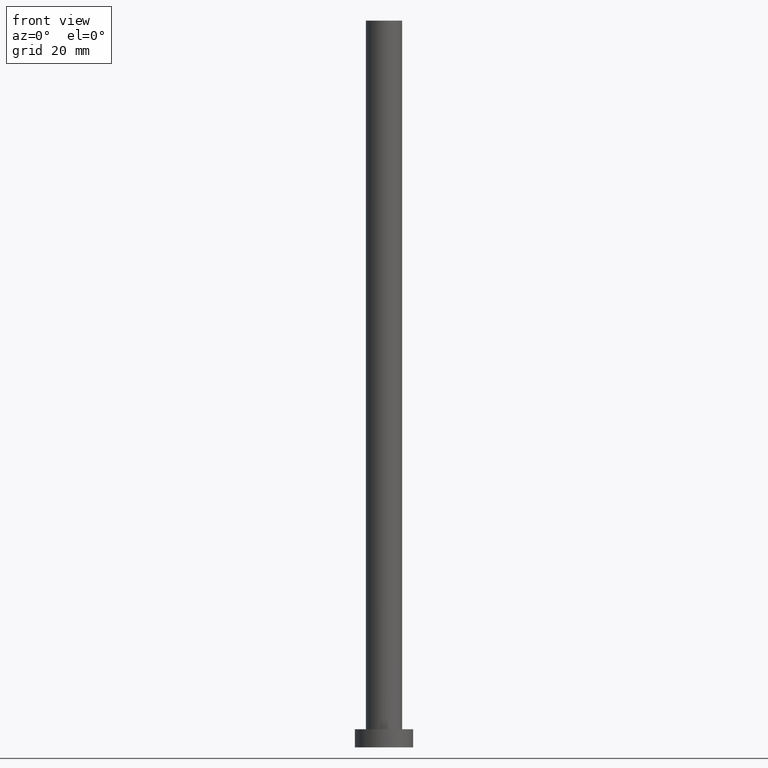
[diagram: clean part render]
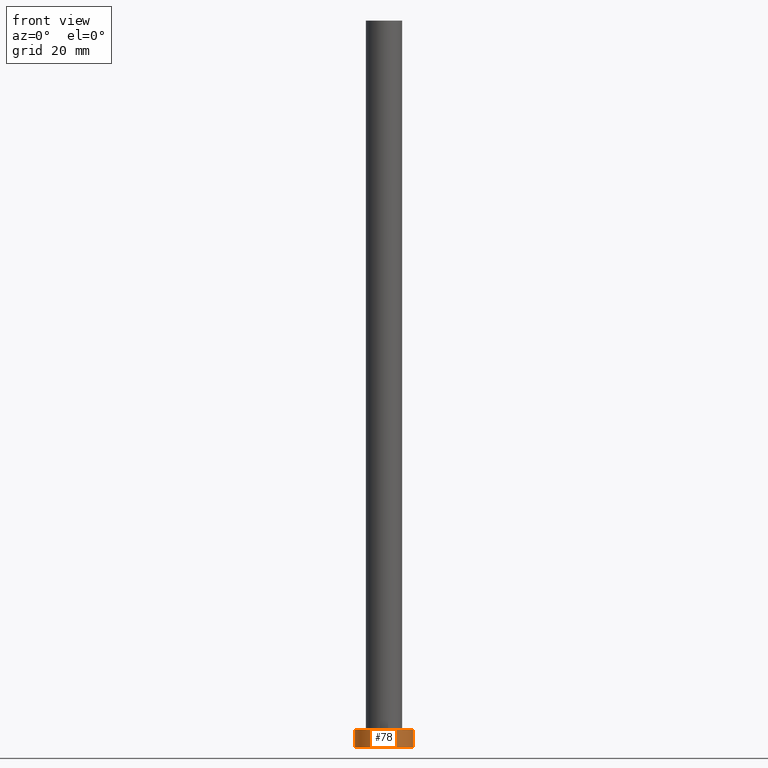
[diagram: same view with one face highlighted and labeled with its STEP entity id]
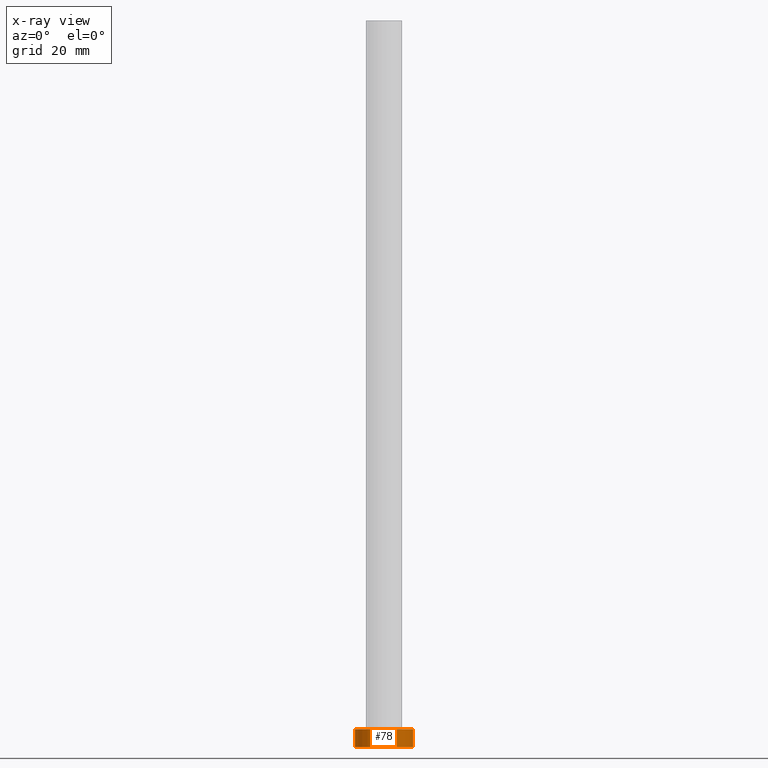
[diagram: x-ray of the same camera — body ghosted, the highlighted face saturated]
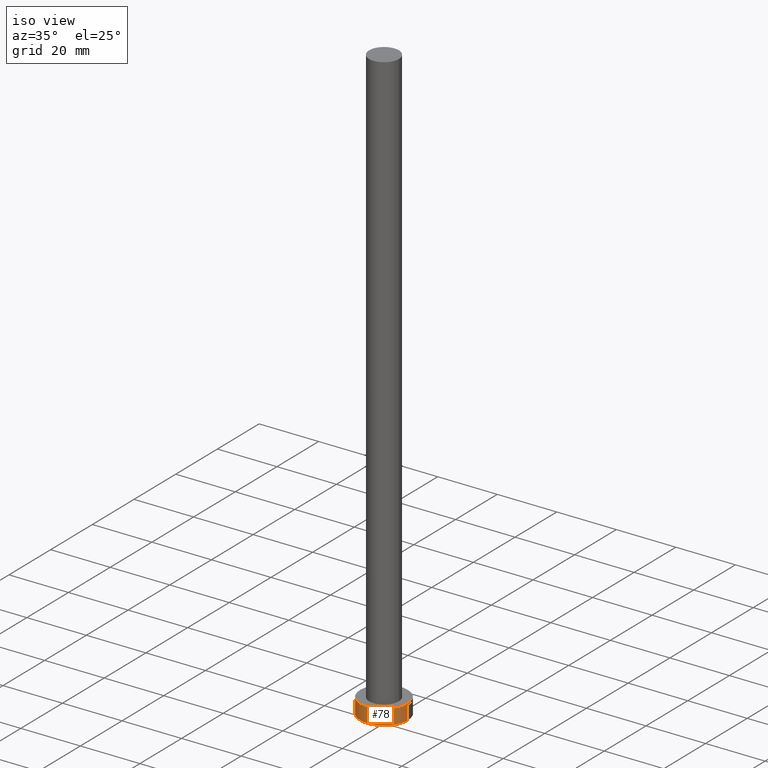
[diagram: same view with one face highlighted and labeled with its STEP entity id]
A machine part, front view. The second image highlights one B-rep face of the part: STEP entity #78.
The next image is the same camera in x-ray: the body ghosted, the highlighted face saturated — about 0% of this face is hidden behind the body in this view.
A second angle (iso view) of the same face is appended — the face is thin or edge-on in the first view.
In plain terms, the highlighted cylindrical surface (edge-blend (fillet) strip) has radius 8 mm, axis along (-0, -0, -1).
Its self-contained STEP definition (entity closure, byte-faithful):
#9 = ORIENTED_EDGE ( 'NONE', *, *, #222, .T. ) ;
#21 = CARTESIAN_POINT ( 'NONE',  ( -8.000000000000000000, 0.000000000000000000, 5.000000000000000000 ) ) ;
#23 = DIRECTION ( 'NONE',  ( -0.000000000000000000, -0.000000000000000000, -1.000000000000000000 ) ) ;
#32 = FACE_OUTER_BOUND ( 'NONE', #152, .T. ) ;
#41 = CARTESIAN_POINT ( 'NONE',  ( 0.000000000000000000, 0.000000000000000000, 5.000000000000000000 ) ) ;
#42 = DIRECTION ( 'NONE',  ( 0.000000000000000000, 0.000000000000000000, 1.000000000000000000 ) ) ;
#64 = CARTESIAN_POINT ( 'NONE',  ( 0.000000000000000000, 0.000000000000000000, 0.000000000000000000 ) ) ;
#77 = CARTESIAN_POINT ( 'NONE',  ( 8.000000000000000000, 9.797174393178825657E-16, 5.000000000000000000 ) ) ;
#78 = ADVANCED_FACE ( 'NONE', ( #32 ), #115, .T. ) ;
#79 = VERTEX_POINT ( 'NONE', #255 ) ;
#81 = CIRCLE ( 'NONE', #234, 8.000000000000000000 ) ;
#82 = EDGE_CURVE ( 'NONE', #194, #79, #232, .T. ) ;
#84 = VECTOR ( 'NONE', #139, 1000.000000000000000 ) ;
#92 = ORIENTED_EDGE ( 'NONE', *, *, #124, .F. ) ;
#96 = DIRECTION ( 'NONE',  ( -1.000000000000000000, 0.000000000000000000, 0.000000000000000000 ) ) ;
#115 = CYLINDRICAL_SURFACE ( 'NONE', #193, 8.000000000000000000 ) ;
#121 = AXIS2_PLACEMENT_3D ( 'NONE', #41, #239, #201 ) ;
#124 = EDGE_CURVE ( 'NONE', #213, #194, #173, .T. ) ;
#128 = DIRECTION ( 'NONE',  ( 1.000000000000000000, 0.000000000000000000, 0.000000000000000000 ) ) ;
#139 = DIRECTION ( 'NONE',  ( -0.000000000000000000, -0.000000000000000000, -1.000000000000000000 ) ) ;
#142 = CARTESIAN_POINT ( 'NONE',  ( 8.000000000000000000, 9.797174393178825657E-16, 5.000000000000000000 ) ) ;
#152 = EDGE_LOOP ( 'NONE', ( #229, #92, #9, #167 ) ) ;
#167 = ORIENTED_EDGE ( 'NONE', *, *, #252, .T. ) ;
#173 = CIRCLE ( 'NONE', #121, 8.000000000000000000 ) ;
#177 = VECTOR ( 'NONE', #23, 1000.000000000000000 ) ;
#190 = CARTESIAN_POINT ( 'NONE',  ( 0.000000000000000000, 0.000000000000000000, 5.000000000000000000 ) ) ;
#192 = DIRECTION ( 'NONE',  ( -0.000000000000000000, -0.000000000000000000, -1.000000000000000000 ) ) ;
#193 = AXIS2_PLACEMENT_3D ( 'NONE', #190, #192, #96 ) ;
#194 = VERTEX_POINT ( 'NONE', #142 ) ;
#201 = DIRECTION ( 'NONE',  ( 1.000000000000000000, 0.000000000000000000, 0.000000000000000000 ) ) ;
#204 = CARTESIAN_POINT ( 'NONE',  ( -8.000000000000000000, 0.000000000000000000, 5.000000000000000000 ) ) ;
#206 = CARTESIAN_POINT ( 'NONE',  ( -8.000000000000000000, 0.000000000000000000, 0.000000000000000000 ) ) ;
#213 = VERTEX_POINT ( 'NONE', #21 ) ;
#222 = EDGE_CURVE ( 'NONE', #213, #253, #224, .T. ) ;
#224 = LINE ( 'NONE', #204, #177 ) ;
#229 = ORIENTED_EDGE ( 'NONE', *, *, #82, .F. ) ;
#232 = LINE ( 'NONE', #77, #84 ) ;
#234 = AXIS2_PLACEMENT_3D ( 'NONE', #64, #42, #128 ) ;
#239 = DIRECTION ( 'NONE',  ( 0.000000000000000000, 0.000000000000000000, 1.000000000000000000 ) ) ;
#252 = EDGE_CURVE ( 'NONE', #253, #79, #81, .T. ) ;
#253 = VERTEX_POINT ( 'NONE', #206 ) ;
#255 = CARTESIAN_POINT ( 'NONE',  ( 8.000000000000000000, 9.797174393178825657E-16, 0.000000000000000000 ) ) ;